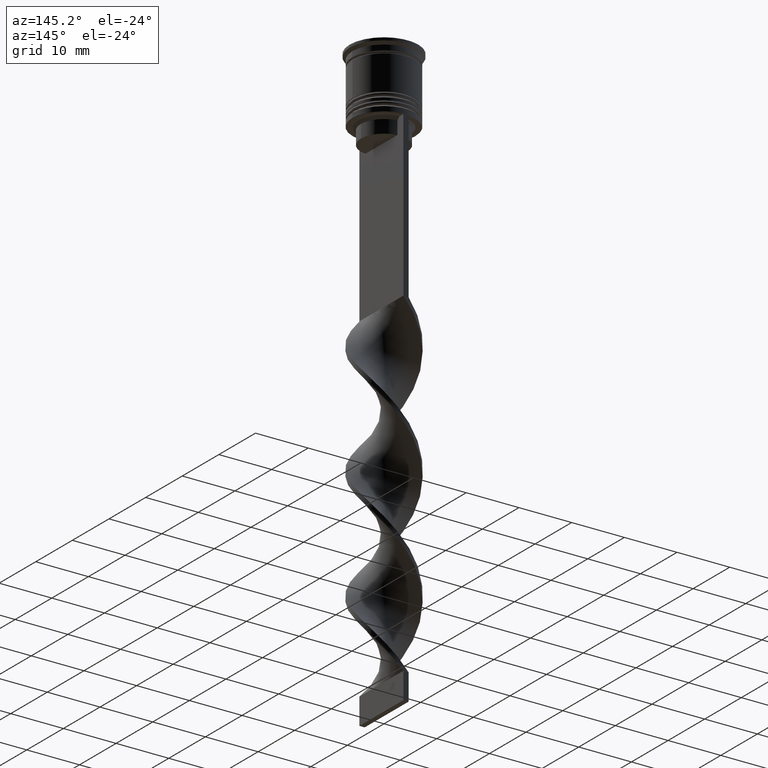
[diagram: clean part render]
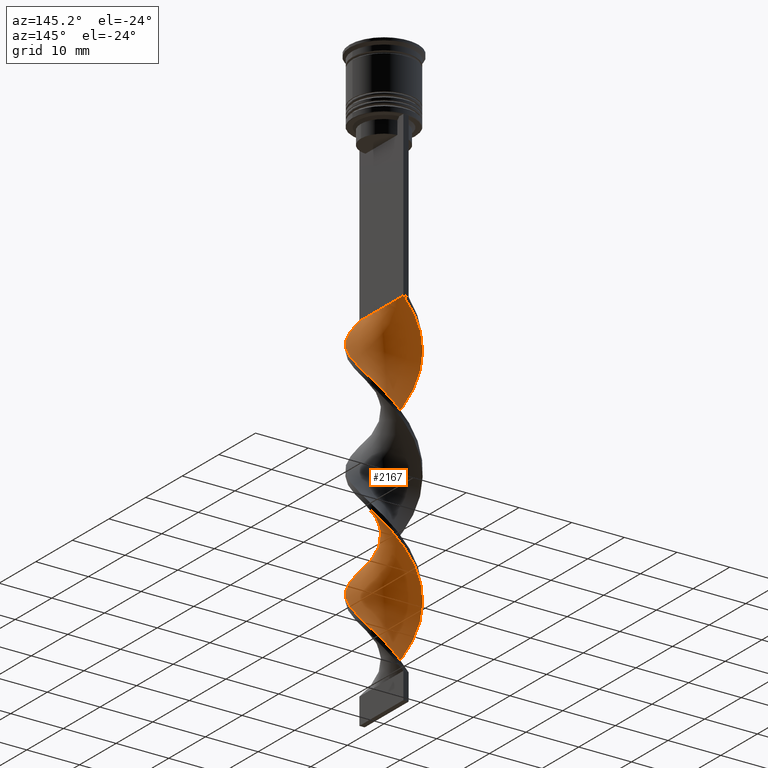
[diagram: same view with one face highlighted and labeled with its STEP entity id]
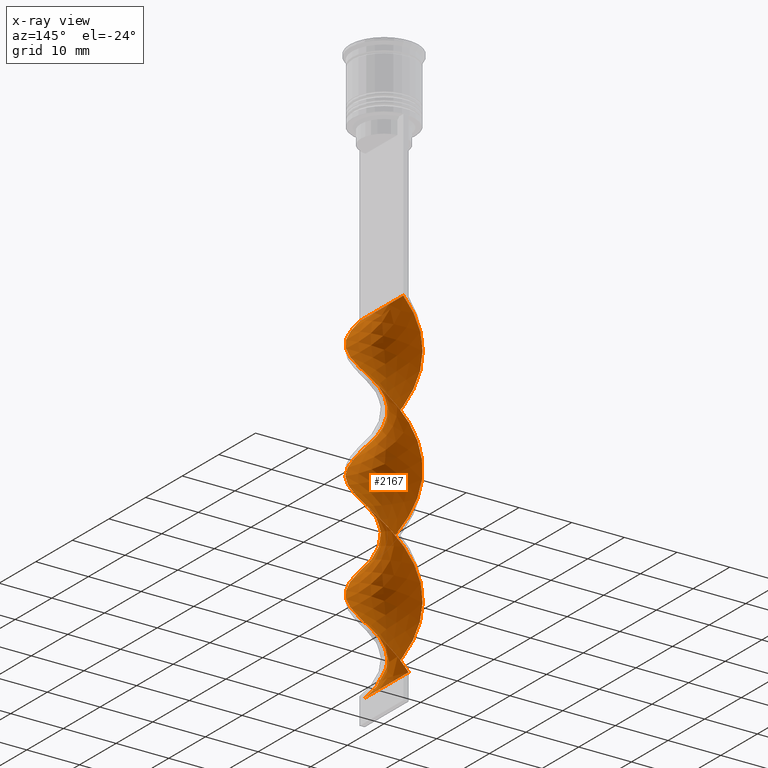
[diagram: x-ray of the same camera — body ghosted, the highlighted face saturated]
A machine part, auxiliary view. The second image highlights one B-rep face of the part: STEP entity #2167.
The next image is the same camera in x-ray: the body ghosted, the highlighted face saturated — about 0% of this face is hidden behind the body in this view.
In plain terms, the highlighted face is a freeform B-spline surface patch.
Its self-contained STEP definition (entity closure, byte-faithful):
#13 = CARTESIAN_POINT ( 'NONE',  ( 0.5000000000000002220, 6.000000000000000888, -43.50000000000000000 ) ) ;
#40 = EDGE_LOOP ( 'NONE', ( #1164, #1392, #2289, #112 ) ) ;
#46 = CARTESIAN_POINT ( 'NONE',  ( 6.016521584715984972, -0.2268656444829120489, -96.01282051282051100 ) ) ;
#47 = CARTESIAN_POINT ( 'NONE',  ( 1.228531899333563215, -5.939289008388868751, -44.32051282051282470 ) ) ;
#62 = CARTESIAN_POINT ( 'NONE',  ( 6.044068061194096231, 0.5036723384328413156, -96.83333333333332860 ) ) ;
#102 = CARTESIAN_POINT ( 'NONE',  ( 5.747901747727227395, 1.935476698729089007, -98.47435897435896379 ) ) ;
#106 = CARTESIAN_POINT ( 'NONE',  ( -5.432795012591220996, 2.595137443597922644, -94.37179487179486159 ) ) ;
#112 = ORIENTED_EDGE ( 'NONE', *, *, #320, .F. ) ;
#113 = CARTESIAN_POINT ( 'NONE',  ( 6.044068061194098007, -0.5036723384328427588, -75.50000000000000000 ) ) ;
#118 = CARTESIAN_POINT ( 'NONE',  ( -3.018907784180934861, -5.260288998093234802, -82.06410256410255499 ) ) ;
#122 = CARTESIAN_POINT ( 'NONE',  ( 5.747901747727229171, -1.935476698729089451, -73.85897435897436480 ) ) ;
#140 = CARTESIAN_POINT ( 'NONE',  ( -4.653870821996361151, -3.819880413333761826, -79.60256410256410220 ) ) ;
#153 = CARTESIAN_POINT ( 'NONE',  ( 4.190053366537507706, 4.384962638200772034, -101.7564102564102484 ) ) ;
#157 = CARTESIAN_POINT ( 'NONE',  ( -5.432795012591220996, 2.595137443597922644, -51.70512820512820440 ) ) ;
#161 = CARTESIAN_POINT ( 'NONE',  ( -5.747901747727229171, 1.935476698729089895, -52.52564102564102910 ) ) ;
#167 = CARTESIAN_POINT ( 'NONE',  ( -0.4999999999999994449, 5.999999999999999112, -107.5000000000000000 ) ) ;
#169 = CARTESIAN_POINT ( 'NONE',  ( -5.787399899633758338, -1.660121200912505479, -56.62820512820513130 ) ) ;
#170 = CARTESIAN_POINT ( 'NONE',  ( -1.228531899333566546, -5.939289008388870528, -106.6794871794871682 ) ) ;
#188 = CARTESIAN_POINT ( 'NONE',  ( -5.787399899633755673, 1.660121200912507478, -73.03846153846153300 ) ) ;
#189 = CARTESIAN_POINT ( 'NONE',  ( 4.190053366537507706, 4.384962638200772034, -59.08974358974358410 ) ) ;
#200 = CARTESIAN_POINT ( 'NONE',  ( 0.5000000000000002220, 6.000000000000000888, -86.16666666666667140 ) ) ;
#207 = CARTESIAN_POINT ( 'NONE',  ( -4.653870821996361151, -3.819880413333761826, -79.60256410256410220 ) ) ;
#211 = CARTESIAN_POINT ( 'NONE',  ( 2.614197889543182107, -5.472697136436196708, -45.96153846153845279 ) ) ;
#220 = CARTESIAN_POINT ( 'NONE',  ( -4.858046446425395182, -3.630954320453863460, -101.7564102564102484 ) ) ;
#235 = CARTESIAN_POINT ( 'NONE',  ( -3.231067045089217604, -5.080374567897375293, -104.2179487179487012 ) ) ;
#268 = CARTESIAN_POINT ( 'NONE',  ( -0.5000000000000004441, -2.000000000000000888, -107.5000000000000000 ) ) ;
#282 = CARTESIAN_POINT ( 'NONE',  ( 5.787399899633758338, 1.660121200912505923, -77.96153846153845279 ) ) ;
#285 = CARTESIAN_POINT ( 'NONE',  ( 0.2285318993335655469, 6.060710991611128584, -106.6794871794871682 ) ) ;
#320 = EDGE_CURVE ( 'NONE', #998, #657, #1242, .T. ) ;
#322 = VERTEX_POINT ( 'NONE', #1308 ) ;
#323 = CARTESIAN_POINT ( 'NONE',  ( 0.5000000000000002220, -5.999999999999999112, -43.50000000000000000 ) ) ;
#351 = CARTESIAN_POINT ( 'NONE',  ( 6.016521584715984972, -0.2268656444829120489, -53.34615384615383959 ) ) ;
#364 = CARTESIAN_POINT ( 'NONE',  ( -0.9504230770123205385, 5.945308736700091856, -87.80769230769230660 ) ) ;
#383 =( BOUNDED_SURFACE ( )  B_SPLINE_SURFACE ( 1, 2, ( 
 ( #1546, #723, #689, #1531, #2088, #3191, #705, #1013, #740, #2657, #157, #3226, #1836, #1265, #1846, #1543, #169, #1831, #3474, #397, #428, #2936, #3174, #1278, #2121, #1524, #2348, #3524, #3506, #1006, #1800, #3219, #3457, #734, #2951, #3241, #2620, #122, #1229, #2758, #1102, #1942, #282, #1609, #2234, #2973, #481, #776, #1067, #821, #2572, #2553, #2853, #3408, #364, #1494, #1163, #2283, #1477, #2607, #3388, #2316, #106, #2272, #736, #2395, #1569, #483, #2651, #2139, #1867, #2378, #2084, #987, #778, #3543, #2705, #170, #1247 ),
 ( #1279, #1834, #1847, #211, #3508, #2952, #1320, #2434, #1008, #1045, #3267, #2904, #411, #1526, #2637, #2363, #1963, #1649, #1104, #3054, #1394, #3362, #2723, #503, #2173, #3233, #2424, #511, #1037, #3280, #458, #3222, #2177, #2679, #1604, #2448, #188, #1298, #2411, #2933, #1622, #3284, #1885, #2134, #207, #1355, #1862, #3485, #1585, #982, #1553, #2966, #477, #2428, #3537, #2154, #2992, #2506, #2829, #1685, #1980, #2814, #1708, #2560, #46, #62, #2080, #102, #1540, #3432, #2885, #2015, #1761, #2183, #1948, #1592, #1668, #285, #1396 ) ),
 .UNSPECIFIED., .F., .F., .F. ) 
 B_SPLINE_SURFACE_WITH_KNOTS ( ( 2, 2 ),
 ( 3, 2, 2, 2, 2, 2, 2, 2, 2, 2, 2, 2, 2, 2, 2, 2, 2, 2, 2, 2, 2, 2, 2, 2, 2, 2, 2, 2, 2, 2, 2, 2, 2, 2, 2, 2, 2, 2, 2, 3 ),
 ( 0.000000000000000000, 1.000000000000000000 ),
 ( 0.000000000000000000, 0.01923076923076923184, 0.03846153846153846367, 0.05769230769230769551, 0.07692307692307692735, 0.09615384615384615918, 0.1153846153846153910, 0.1346153846153846090, 0.1538461538461538547, 0.1730769230769230727, 0.1923076923076923184, 0.2115384615384615363, 0.2307692307692307820, 0.2500000000000000000, 0.2692307692307692180, 0.2884615384615384359, 0.3076923076923077094, 0.3269230769230769273, 0.3461538461538461453, 0.3653846153846153633, 0.3846153846153846367, 0.4038461538461538547, 0.4230769230769230727, 0.4423076923076922906, 0.4615384615384615641, 0.4807692307692307820, 0.5000000000000000000, 0.5192307692307692735, 0.5384615384615384359, 0.5576923076923077094, 0.5769230769230768718, 0.5961538461538461453, 0.6153846153846154188, 0.6346153846153845812, 0.6538461538461538547, 0.6730769230769231282, 0.6923076923076922906, 0.7115384615384615641, 0.7307692307692307265, 0.7500000000000000000 ),
 .UNSPECIFIED. ) 
 GEOMETRIC_REPRESENTATION_ITEM ( )  RATIONAL_B_SPLINE_SURFACE ( (
 ( 1.000000000000000000, 0.9927088740980539727, 1.000000000000000000, 0.9927088740980539727, 1.000000000000000000, 0.9927088740980539727, 1.000000000000000000, 0.9927088740980539727, 1.000000000000000000, 0.9927088740980539727, 1.000000000000000000, 0.9927088740980539727, 1.000000000000000000, 0.9927088740980539727, 1.000000000000000000, 0.9927088740980539727, 1.000000000000000000, 0.9927088740980539727, 1.000000000000000000, 0.9927088740980539727, 1.000000000000000000, 0.9927088740980539727, 1.000000000000000000, 0.9927088740980539727, 1.000000000000000000, 0.9927088740980539727, 1.000000000000000000, 0.9927088740980539727, 1.000000000000000000, 0.9927088740980539727, 1.000000000000000000, 0.9927088740980539727, 1.000000000000000000, 0.9927088740980539727, 1.000000000000000000, 0.9927088740980539727, 1.000000000000000000, 0.9927088740980539727, 1.000000000000000000, 0.9927088740980539727, 1.000000000000000000, 0.9927088740980539727, 1.000000000000000000, 0.9927088740980539727, 1.000000000000000000, 0.9927088740980539727, 1.000000000000000000, 0.9927088740980539727, 1.000000000000000000, 0.9927088740980539727, 1.000000000000000000, 0.9927088740980539727, 1.000000000000000000, 0.9927088740980539727, 1.000000000000000000, 0.9927088740980539727, 1.000000000000000000, 0.9927088740980539727, 1.000000000000000000, 0.9927088740980539727, 1.000000000000000000, 0.9927088740980539727, 1.000000000000000000, 0.9927088740980539727, 1.000000000000000000, 0.9927088740980539727, 1.000000000000000000, 0.9927088740980539727, 1.000000000000000000, 0.9927088740980539727, 1.000000000000000000, 0.9927088740980539727, 1.000000000000000000, 0.9927088740980539727, 1.000000000000000000, 0.9927088740980539727, 1.000000000000000000, 0.9927088740980539727, 1.000000000000000000),
 ( 1.000000000000000000, 0.9927088740980539727, 1.000000000000000000, 0.9927088740980539727, 1.000000000000000000, 0.9927088740980539727, 1.000000000000000000, 0.9927088740980539727, 1.000000000000000000, 0.9927088740980539727, 1.000000000000000000, 0.9927088740980539727, 1.000000000000000000, 0.9927088740980539727, 1.000000000000000000, 0.9927088740980539727, 1.000000000000000000, 0.9927088740980539727, 1.000000000000000000, 0.9927088740980539727, 1.000000000000000000, 0.9927088740980539727, 1.000000000000000000, 0.9927088740980539727, 1.000000000000000000, 0.9927088740980539727, 1.000000000000000000, 0.9927088740980539727, 1.000000000000000000, 0.9927088740980539727, 1.000000000000000000, 0.9927088740980539727, 1.000000000000000000, 0.9927088740980539727, 1.000000000000000000, 0.9927088740980539727, 1.000000000000000000, 0.9927088740980539727, 1.000000000000000000, 0.9927088740980539727, 1.000000000000000000, 0.9927088740980539727, 1.000000000000000000, 0.9927088740980539727, 1.000000000000000000, 0.9927088740980539727, 1.000000000000000000, 0.9927088740980539727, 1.000000000000000000, 0.9927088740980539727, 1.000000000000000000, 0.9927088740980539727, 1.000000000000000000, 0.9927088740980539727, 1.000000000000000000, 0.9927088740980539727, 1.000000000000000000, 0.9927088740980539727, 1.000000000000000000, 0.9927088740980539727, 1.000000000000000000, 0.9927088740980539727, 1.000000000000000000, 0.9927088740980539727, 1.000000000000000000, 0.9927088740980539727, 1.000000000000000000, 0.9927088740980539727, 1.000000000000000000, 0.9927088740980539727, 1.000000000000000000, 0.9927088740980539727, 1.000000000000000000, 0.9927088740980539727, 1.000000000000000000, 0.9927088740980539727, 1.000000000000000000, 0.9927088740980539727, 1.000000000000000000) ) ) 
 REPRESENTATION_ITEM ( '' )  SURFACE ( )  );
#386 = CARTESIAN_POINT ( 'NONE',  ( 4.190053366537505930, -4.384962638200776475, -70.57692307692306599 ) ) ;
#395 = CARTESIAN_POINT ( 'NONE',  ( 3.231067045089215828, -5.080374567897374405, -46.78205128205127750 ) ) ;
#397 = CARTESIAN_POINT ( 'NONE',  ( -4.858046446425395182, -3.630954320453863460, -59.08974358974359120 ) ) ;
#402 = CARTESIAN_POINT ( 'NONE',  ( -5.787399899633758338, -1.660121200912505479, -56.62820512820513130 ) ) ;
#409 = CARTESIAN_POINT ( 'NONE',  ( 3.018907784180934417, 5.260288998093234802, -60.73076923076922640 ) ) ;
#411 = CARTESIAN_POINT ( 'NONE',  ( 6.016521584715984972, -0.2268656444829120489, -53.34615384615383959 ) ) ;
#426 = CARTESIAN_POINT ( 'NONE',  ( 6.016521584715984972, -0.2268656444829120489, -96.01282051282051100 ) ) ;
#428 = CARTESIAN_POINT ( 'NONE',  ( -4.352991323530323697, -4.159503159906208225, -59.91025641025640880 ) ) ;
#441 = CARTESIAN_POINT ( 'NONE',  ( 6.044068061194096231, 0.5036723384328413156, -96.83333333333332860 ) ) ;
#442 = VERTEX_POINT ( 'NONE', #3404 ) ;
#444 = LINE ( 'NONE', #1009, #2346 ) ;
#451 = CARTESIAN_POINT ( 'NONE',  ( 3.604480575359219952, -4.822625818147006527, -69.75641025641024839 ) ) ;
#455 = CARTESIAN_POINT ( 'NONE',  ( 5.895984904460661369, 1.219574518580964329, -97.65384615384614619 ) ) ;
#458 = CARTESIAN_POINT ( 'NONE',  ( -3.231067045089215384, 5.080374567897374405, -68.11538461538459899 ) ) ;
#469 = CARTESIAN_POINT ( 'NONE',  ( 2.614197889543185216, 5.472697136436197596, -83.70512820512820440 ) ) ;
#477 = CARTESIAN_POINT ( 'NONE',  ( 0.5000000000000002220, -5.999999999999999112, -86.16666666666667140 ) ) ;
#478 = CARTESIAN_POINT ( 'NONE',  ( -3.847936200635249104, 4.688051999358553878, -68.93589743589743080 ) ) ;
#481 = CARTESIAN_POINT ( 'NONE',  ( 4.352991323530323697, 4.159503159906207337, -81.24358974358973740 ) ) ;
#483 = CARTESIAN_POINT ( 'NONE',  ( -5.988975108237874601, -0.9574036273986639145, -98.47435897435896379 ) ) ;
#492 = CARTESIAN_POINT ( 'NONE',  ( -1.921364894438374993, -5.705993072412534062, -105.8589743589743506 ) ) ;
#503 = CARTESIAN_POINT ( 'NONE',  ( 1.672314254691079194, 5.829906481789051576, -62.37179487179486870 ) ) ;
#509 = CARTESIAN_POINT ( 'NONE',  ( -5.221935568727517740, -2.996896547440106584, -100.9358974358974308 ) ) ;
#511 = CARTESIAN_POINT ( 'NONE',  ( -1.228531899333561883, 5.939289008388868751, -65.65384615384614619 ) ) ;
#525 = CARTESIAN_POINT ( 'NONE',  ( 1.921364894438378323, 5.705993072412532285, -84.52564102564103621 ) ) ;
#657 = VERTEX_POINT ( 'NONE', #2590 ) ;
#658 = CARTESIAN_POINT ( 'NONE',  ( 5.747901747727229171, -1.935476698729089451, -73.85897435897436480 ) ) ;
#684 = CARTESIAN_POINT ( 'NONE',  ( 4.653870821996360263, 3.819880413333762270, -100.9358974358974308 ) ) ;
#689 = CARTESIAN_POINT ( 'NONE',  ( -0.9504230770123205385, 5.945308736700091856, -45.14102564102563520 ) ) ;
#697 = CARTESIAN_POINT ( 'NONE',  ( 1.228531899333563215, -5.939289008388868751, -86.98717948717948900 ) ) ;
#705 = CARTESIAN_POINT ( 'NONE',  ( -3.604480575359219952, 4.822625818147005639, -48.42307692307691269 ) ) ;
#708 = CARTESIAN_POINT ( 'NONE',  ( 0.9504230770123185401, -5.945308736700091856, -66.47435897435896379 ) ) ;
#716 = CARTESIAN_POINT ( 'NONE',  ( 0.2285318993335655469, 6.060710991611129472, -106.6794871794871824 ) ) ;
#723 = CARTESIAN_POINT ( 'NONE',  ( -0.2285318993335630489, 6.060710991611130360, -44.32051282051282470 ) ) ;
#726 = CARTESIAN_POINT ( 'NONE',  ( 2.345611019436006028, -5.545097739941144077, -68.11538461538459899 ) ) ;
#732 = CARTESIAN_POINT ( 'NONE',  ( 1.672314254691078972, 5.829906481789051576, -62.37179487179486870 ) ) ;
#734 = CARTESIAN_POINT ( 'NONE',  ( 4.190053366537505930, -4.384962638200775586, -70.57692307692306599 ) ) ;
#736 = CARTESIAN_POINT ( 'NONE',  ( -5.895984904460663145, 1.219574518580966771, -96.01282051282051100 ) ) ;
#740 = CARTESIAN_POINT ( 'NONE',  ( -4.653870821996361151, 3.819880413333764047, -50.06410256410256210 ) ) ;
#743 = CARTESIAN_POINT ( 'NONE',  ( -1.672314254691077640, 5.829906481789053352, -88.62820512820512420 ) ) ;
#749 = CARTESIAN_POINT ( 'NONE',  ( -5.221935568727515076, 2.996896547440107028, -71.39743589743588359 ) ) ;
#756 = CARTESIAN_POINT ( 'NONE',  ( -0.5000000000000009992, -6.000000000000000888, -107.5000000000000000 ) ) ;
#776 = CARTESIAN_POINT ( 'NONE',  ( 3.847936200635251769, 4.688051999358553878, -82.06410256410255499 ) ) ;
#778 = CARTESIAN_POINT ( 'NONE',  ( -3.231067045089217604, -5.080374567897375293, -104.2179487179487012 ) ) ;
#785 = CARTESIAN_POINT ( 'NONE',  ( 4.858046446425397846, 3.630954320453860795, -80.42307692307691980 ) ) ;
#821 = CARTESIAN_POINT ( 'NONE',  ( 2.614197889543185216, 5.472697136436197596, -83.70512820512820440 ) ) ;
#915 = CARTESIAN_POINT ( 'NONE',  ( 5.432795012591220107, 2.595137443597919980, -56.62820512820513130 ) ) ;
#955 = CARTESIAN_POINT ( 'NONE',  ( 5.432795012591220107, 2.595137443597919980, -99.29487179487178139 ) ) ;
#963 = CARTESIAN_POINT ( 'NONE',  ( -5.585824691029640299, -2.362838774426348376, -57.44871794871794890 ) ) ;
#968 = CARTESIAN_POINT ( 'NONE',  ( -4.190053366537509483, -4.384962638200769369, -80.42307692307691980 ) ) ;
#975 = CARTESIAN_POINT ( 'NONE',  ( -3.231067045089217604, -5.080374567897375293, -61.55128205128204399 ) ) ;
#982 = CARTESIAN_POINT ( 'NONE',  ( -1.672314254691079638, -5.829906481789051576, -83.70512820512820440 ) ) ;
#984 = CARTESIAN_POINT ( 'NONE',  ( 1.672314254691078972, 5.829906481789051576, -105.0384615384615188 ) ) ;
#987 = CARTESIAN_POINT ( 'NONE',  ( -3.847936200635251325, -4.688051999358553878, -103.3974358974358694 ) ) ;
#995 = CARTESIAN_POINT ( 'NONE',  ( -0.5000000000000009992, -6.000000000000000888, -64.83333333333332860 ) ) ;
#998 = VERTEX_POINT ( 'NONE', #13 ) ;
#1004 = CARTESIAN_POINT ( 'NONE',  ( -6.044068061194096231, -0.5036723384328406494, -75.50000000000000000 ) ) ;
#1006 = CARTESIAN_POINT ( 'NONE',  ( 1.672314254691075641, -5.829906481789053352, -67.29487179487178139 ) ) ;
#1008 = CARTESIAN_POINT ( 'NONE',  ( 5.221935568727515076, -2.996896547440107028, -50.06410256410256210 ) ) ;
#1009 = CARTESIAN_POINT ( 'NONE',  ( 0.5000000000000002220, -6.000000000000000000, -43.50000000000000000 ) ) ;
#1013 = CARTESIAN_POINT ( 'NONE',  ( -4.190053366537507706, 4.384962638200773810, -49.24358974358973740 ) ) ;
#1024 = CARTESIAN_POINT ( 'NONE',  ( -1.921364894438370552, 5.705993072412533174, -66.47435897435896379 ) ) ;
#1037 = CARTESIAN_POINT ( 'NONE',  ( -1.921364894438370552, 5.705993072412533174, -66.47435897435896379 ) ) ;
#1045 = CARTESIAN_POINT ( 'NONE',  ( 5.585824691029639411, -2.362838774426348376, -50.88461538461538680 ) ) ;
#1056 = CARTESIAN_POINT ( 'NONE',  ( -5.988975108237876377, -0.9574036273986638035, -98.47435897435896379 ) ) ;
#1067 = CARTESIAN_POINT ( 'NONE',  ( 3.231067045089220713, 5.080374567897373517, -82.88461538461537259 ) ) ;
#1102 = CARTESIAN_POINT ( 'NONE',  ( 6.016521584715985860, 0.2268656444829068586, -76.32051282051281760 ) ) ;
#1104 = CARTESIAN_POINT ( 'NONE',  ( 4.653870821996360263, 3.819880413333762270, -58.26923076923076650 ) ) ;
#1163 = CARTESIAN_POINT ( 'NONE',  ( -2.345611019436006028, 5.545097739941144077, -89.44871794871794179 ) ) ;
#1164 = ORIENTED_EDGE ( 'NONE', *, *, #1903, .F. ) ;
#1172 = CARTESIAN_POINT ( 'NONE',  ( 4.352991323530321033, -4.159503159906209113, -48.42307692307691269 ) ) ;
#1194 = CARTESIAN_POINT ( 'NONE',  ( 6.044068061194096231, 0.5036723384328413156, -54.16666666666666430 ) ) ;
#1201 = CARTESIAN_POINT ( 'NONE',  ( 5.432795012591220996, -2.595137443597923532, -73.03846153846153300 ) ) ;
#1226 = CARTESIAN_POINT ( 'NONE',  ( 4.858046446425392517, -3.630954320453864348, -91.91025641025643722 ) ) ;
#1229 = CARTESIAN_POINT ( 'NONE',  ( 5.895984904460663145, -1.219574518580968769, -74.67948717948718240 ) ) ;
#1238 = CARTESIAN_POINT ( 'NONE',  ( -0.9504230770123205385, 5.945308736700091856, -45.14102564102563520 ) ) ;
#1242 =( BOUNDED_CURVE ( )  B_SPLINE_CURVE ( 2, ( #2659, #2893, #1238, #1254, #1775, #1533, #2357, #2039, #3466, #3424, #2109, #161, #2609, #1562, #2370, #1269, #402, #963, #2063, #3147, #1839, #2381, #975, #2076, #2090, #2943, #995, #3212, #708, #2910, #726, #3165, #451, #386, #2929, #2673, #1201, #658, #1496, #113, #2339, #2960, #1897, #3019, #2422, #785, #1287, #2464, #2170, #469, #525, #3229, #200, #3253, #2442, #743, #1616, #2189, #3277, #3004, #1637, #3532, #2747, #2128, #1658, #2403, #1348, #1056, #1576, #2714, #509, #220, #2692, #2731, #235, #2983, #492, #1857, #1876 ),
 .UNSPECIFIED., .F., .T. ) 
 B_SPLINE_CURVE_WITH_KNOTS ( ( 3, 2, 2, 2, 2, 2, 2, 2, 2, 2, 2, 2, 2, 2, 2, 2, 2, 2, 2, 2, 2, 2, 2, 2, 2, 2, 2, 2, 2, 2, 2, 2, 2, 2, 2, 2, 2, 2, 2, 3 ),
 ( 0.000000000000000000, 0.01923076923076923184, 0.03846153846153846367, 0.05769230769230768857, 0.07692307692307692735, 0.09615384615384615918, 0.1153846153846153771, 0.1346153846153846090, 0.1538461538461538547, 0.1730769230769230449, 0.1923076923076923184, 0.2115384615384615363, 0.2307692307692307543, 0.2500000000000000000, 0.2692307692307692180, 0.2884615384615384359, 0.3076923076923077094, 0.3269230769230769273, 0.3461538461538460898, 0.3653846153846153633, 0.3846153846153846367, 0.4038461538461539102, 0.4230769230769230727, 0.4423076923076922906, 0.4615384615384615086, 0.4807692307692307820, 0.5000000000000000000, 0.5192307692307692735, 0.5384615384615384359, 0.5576923076923077094, 0.5769230769230768718, 0.5961538461538461453, 0.6153846153846154188, 0.6346153846153845812, 0.6538461538461538547, 0.6730769230769230171, 0.6923076923076921796, 0.7115384615384615641, 0.7307692307692307265, 0.7500000000000000000 ),
 .UNSPECIFIED. ) 
 CURVE ( )  GEOMETRIC_REPRESENTATION_ITEM ( )  RATIONAL_B_SPLINE_CURVE ( ( 1.000000000000000000, 0.9927088740980539727, 1.000000000000000000, 0.9927088740980539727, 1.000000000000000000, 0.9927088740980539727, 1.000000000000000000, 0.9927088740980539727, 1.000000000000000000, 0.9927088740980539727, 1.000000000000000000, 0.9927088740980539727, 1.000000000000000000, 0.9927088740980539727, 1.000000000000000000, 0.9927088740980539727, 1.000000000000000000, 0.9927088740980539727, 1.000000000000000000, 0.9927088740980539727, 1.000000000000000000, 0.9927088740980539727, 1.000000000000000000, 0.9927088740980539727, 1.000000000000000000, 0.9927088740980539727, 1.000000000000000000, 0.9927088740980539727, 1.000000000000000000, 0.9927088740980539727, 1.000000000000000000, 0.9927088740980539727, 1.000000000000000000, 0.9927088740980539727, 1.000000000000000000, 0.9927088740980539727, 1.000000000000000000, 0.9927088740980539727, 1.000000000000000000, 0.9927088740980539727, 1.000000000000000000, 0.9927088740980539727, 1.000000000000000000, 0.9927088740980539727, 1.000000000000000000, 0.9927088740980539727, 1.000000000000000000, 0.9927088740980539727, 1.000000000000000000, 0.9927088740980539727, 1.000000000000000000, 0.9927088740980539727, 1.000000000000000000, 0.9927088740980539727, 1.000000000000000000, 0.9927088740980539727, 1.000000000000000000, 0.9927088740980539727, 1.000000000000000000, 0.9927088740980539727, 1.000000000000000000, 0.9927088740980539727, 1.000000000000000000, 0.9927088740980539727, 1.000000000000000000, 0.9927088740980539727, 1.000000000000000000, 0.9927088740980539727, 1.000000000000000000, 0.9927088740980539727, 1.000000000000000000, 0.9927088740980539727, 1.000000000000000000, 0.9927088740980539727, 1.000000000000000000, 0.9927088740980539727, 1.000000000000000000, 0.9927088740980539727, 1.000000000000000000 ) ) 
 REPRESENTATION_ITEM ( '' )  );
#1245 = CARTESIAN_POINT ( 'NONE',  ( 4.653870821996360263, 3.819880413333762270, -58.26923076923076650 ) ) ;
#1247 = CARTESIAN_POINT ( 'NONE',  ( -0.5000000000000009992, -6.000000000000000888, -107.5000000000000000 ) ) ;
#1254 = CARTESIAN_POINT ( 'NONE',  ( -1.672314254691077640, 5.829906481789053352, -45.96153846153845990 ) ) ;
#1259 = CARTESIAN_POINT ( 'NONE',  ( 3.604480575359220840, 4.822625818147002086, -102.5769230769230660 ) ) ;
#1262 = DIRECTION ( 'NONE',  ( 0.000000000000000000, 1.000000000000000000, 0.000000000000000000 ) ) ;
#1265 = CARTESIAN_POINT ( 'NONE',  ( -6.044068061194098007, 0.5036723384328419817, -54.16666666666665719 ) ) ;
#1269 = CARTESIAN_POINT ( 'NONE',  ( -5.988975108237876377, -0.9574036273986638035, -55.80769230769230660 ) ) ;
#1276 = CARTESIAN_POINT ( 'NONE',  ( -5.895984904460662257, -1.219574518580961220, -76.32051282051281760 ) ) ;
#1278 = CARTESIAN_POINT ( 'NONE',  ( -2.614197889543184328, -5.472697136436197596, -62.37179487179486870 ) ) ;
#1279 = CARTESIAN_POINT ( 'NONE',  ( 0.5000000000000002220, -5.999999999999999112, -43.50000000000000000 ) ) ;
#1287 = CARTESIAN_POINT ( 'NONE',  ( 4.352991323530323697, 4.159503159906207337, -81.24358974358973740 ) ) ;
#1298 = CARTESIAN_POINT ( 'NONE',  ( -5.988975108237873712, 0.9574036273986636925, -73.85897435897436480 ) ) ;
#1299 = CARTESIAN_POINT ( 'NONE',  ( 0.2285318993335655469, 6.060710991611129472, -64.01282051282051100 ) ) ;
#1308 = CARTESIAN_POINT ( 'NONE',  ( 0.5000000000000002220, -5.999999999999999112, -43.50000000000000000 ) ) ;
#1320 = CARTESIAN_POINT ( 'NONE',  ( 4.352991323530321033, -4.159503159906209113, -48.42307692307691269 ) ) ;
#1348 = CARTESIAN_POINT ( 'NONE',  ( -6.016521584715986748, -0.2268656444829102170, -97.65384615384614619 ) ) ;
#1355 = CARTESIAN_POINT ( 'NONE',  ( -4.190053366537509483, -4.384962638200768481, -80.42307692307691980 ) ) ;
#1392 = ORIENTED_EDGE ( 'NONE', *, *, #2644, .T. ) ;
#1394 = CARTESIAN_POINT ( 'NONE',  ( 3.604480575359220840, 4.822625818147002086, -59.91025641025640880 ) ) ;
#1396 = CARTESIAN_POINT ( 'NONE',  ( -0.4999999999999994449, 5.999999999999999112, -107.5000000000000000 ) ) ;
#1463 = CARTESIAN_POINT ( 'NONE',  ( 5.895984904460661369, 1.219574518580964329, -54.98717948717948190 ) ) ;
#1477 = CARTESIAN_POINT ( 'NONE',  ( -3.604480575359219952, 4.822625818147005639, -91.08974358974359120 ) ) ;
#1481 =( BOUNDED_CURVE ( )  B_SPLINE_CURVE ( 2, ( #323, #47, #1999, #2561, #395, #2254, #1172, #2602, #2327, #2016, #1741, #2844, #351, #1194, #1463, #2584, #915, #3135, #1245, #189, #1588, #409, #2934, #732, #1519, #1299, #1829, #3238, #1024, #2068, #2413, #478, #2361, #3472, #749, #2633, #3520, #1798, #1541, #1004, #1276, #1863, #2969, #2902, #140, #968, #1814, #118, #2135, #2082, #3217, #1844, #3186, #697, #3172, #2949, #2665, #2918, #3203, #1226, #2345, #3455, #2681, #2117, #426, #441, #455, #2649, #955, #1554, #684, #153, #1259, #2376, #3486, #984, #2098, #716, #167 ),
 .UNSPECIFIED., .F., .T. ) 
 B_SPLINE_CURVE_WITH_KNOTS ( ( 3, 2, 2, 2, 2, 2, 2, 2, 2, 2, 2, 2, 2, 2, 2, 2, 2, 2, 2, 2, 2, 2, 2, 2, 2, 2, 2, 2, 2, 2, 2, 2, 2, 2, 2, 2, 2, 2, 2, 3 ),
 ( 0.000000000000000000, 0.01923076923076923184, 0.03846153846153846367, 0.05769230769230768857, 0.07692307692307692735, 0.09615384615384615918, 0.1153846153846153771, 0.1346153846153846090, 0.1538461538461538547, 0.1730769230769230449, 0.1923076923076923184, 0.2115384615384615363, 0.2307692307692307543, 0.2500000000000000000, 0.2692307692307692180, 0.2884615384615384359, 0.3076923076923077094, 0.3269230769230769273, 0.3461538461538460898, 0.3653846153846153633, 0.3846153846153846367, 0.4038461538461539102, 0.4230769230769230727, 0.4423076923076922906, 0.4615384615384615086, 0.4807692307692307820, 0.5000000000000000000, 0.5192307692307692735, 0.5384615384615384359, 0.5576923076923077094, 0.5769230769230768718, 0.5961538461538461453, 0.6153846153846154188, 0.6346153846153845812, 0.6538461538461538547, 0.6730769230769230171, 0.6923076923076921796, 0.7115384615384615641, 0.7307692307692307265, 0.7500000000000000000 ),
 .UNSPECIFIED. ) 
 CURVE ( )  GEOMETRIC_REPRESENTATION_ITEM ( )  RATIONAL_B_SPLINE_CURVE ( ( 1.000000000000000000, 0.9927088740980539727, 1.000000000000000000, 0.9927088740980539727, 1.000000000000000000, 0.9927088740980539727, 1.000000000000000000, 0.9927088740980539727, 1.000000000000000000, 0.9927088740980539727, 1.000000000000000000, 0.9927088740980539727, 1.000000000000000000, 0.9927088740980539727, 1.000000000000000000, 0.9927088740980539727, 1.000000000000000000, 0.9927088740980539727, 1.000000000000000000, 0.9927088740980539727, 1.000000000000000000, 0.9927088740980539727, 1.000000000000000000, 0.9927088740980539727, 1.000000000000000000, 0.9927088740980539727, 1.000000000000000000, 0.9927088740980539727, 1.000000000000000000, 0.9927088740980539727, 1.000000000000000000, 0.9927088740980539727, 1.000000000000000000, 0.9927088740980539727, 1.000000000000000000, 0.9927088740980539727, 1.000000000000000000, 0.9927088740980539727, 1.000000000000000000, 0.9927088740980539727, 1.000000000000000000, 0.9927088740980539727, 1.000000000000000000, 0.9927088740980539727, 1.000000000000000000, 0.9927088740980539727, 1.000000000000000000, 0.9927088740980539727, 1.000000000000000000, 0.9927088740980539727, 1.000000000000000000, 0.9927088740980539727, 1.000000000000000000, 0.9927088740980539727, 1.000000000000000000, 0.9927088740980539727, 1.000000000000000000, 0.9927088740980539727, 1.000000000000000000, 0.9927088740980539727, 1.000000000000000000, 0.9927088740980539727, 1.000000000000000000, 0.9927088740980539727, 1.000000000000000000, 0.9927088740980539727, 1.000000000000000000, 0.9927088740980539727, 1.000000000000000000, 0.9927088740980539727, 1.000000000000000000, 0.9927088740980539727, 1.000000000000000000, 0.9927088740980539727, 1.000000000000000000, 0.9927088740980539727, 1.000000000000000000, 0.9927088740980539727, 1.000000000000000000 ) ) 
 REPRESENTATION_ITEM ( '' )  );
#1494 = CARTESIAN_POINT ( 'NONE',  ( -1.672314254691077862, 5.829906481789053352, -88.62820512820513841 ) ) ;
#1496 = CARTESIAN_POINT ( 'NONE',  ( 5.895984904460663145, -1.219574518580968769, -74.67948717948718240 ) ) ;
#1519 = CARTESIAN_POINT ( 'NONE',  ( 0.9504230770123223149, 5.945308736700090080, -63.19230769230768630 ) ) ;
#1524 = CARTESIAN_POINT ( 'NONE',  ( -1.228531899333566546, -5.939289008388870528, -64.01282051282051100 ) ) ;
#1526 = CARTESIAN_POINT ( 'NONE',  ( 6.044068061194096231, 0.5036723384328413156, -54.16666666666665719 ) ) ;
#1531 = CARTESIAN_POINT ( 'NONE',  ( -1.672314254691077862, 5.829906481789053352, -45.96153846153845279 ) ) ;
#1533 = CARTESIAN_POINT ( 'NONE',  ( -3.018907784180934417, 5.260288998093236579, -47.60256410256409509 ) ) ;
#1540 = CARTESIAN_POINT ( 'NONE',  ( 5.432795012591220107, 2.595137443597919980, -99.29487179487178139 ) ) ;
#1541 = CARTESIAN_POINT ( 'NONE',  ( -6.016521584715984972, 0.2268656444829141028, -74.67948717948718240 ) ) ;
#1543 = CARTESIAN_POINT ( 'NONE',  ( -5.988975108237874601, -0.9574036273986639145, -55.80769230769230660 ) ) ;
#1546 = CARTESIAN_POINT ( 'NONE',  ( 0.5000000000000002220, 6.000000000000000888, -43.50000000000000000 ) ) ;
#1553 = CARTESIAN_POINT ( 'NONE',  ( -0.9504230770123257566, -5.945308736700090080, -84.52564102564103621 ) ) ;
#1554 = CARTESIAN_POINT ( 'NONE',  ( 5.117688277455212820, 3.254798188466753395, -100.1153846153846132 ) ) ;
#1562 = CARTESIAN_POINT ( 'NONE',  ( -6.044068061194098007, 0.5036723384328419817, -54.16666666666666430 ) ) ;
#1569 = CARTESIAN_POINT ( 'NONE',  ( -6.016521584715986748, -0.2268656444829102170, -97.65384615384614619 ) ) ;
#1576 = CARTESIAN_POINT ( 'NONE',  ( -5.787399899633758338, -1.660121200912505479, -99.29487179487178139 ) ) ;
#1577 = EDGE_CURVE ( 'NONE', #657, #442, #2563, .T. ) ;
#1585 = CARTESIAN_POINT ( 'NONE',  ( -2.345611019436009581, -5.545097739941142301, -82.88461538461537259 ) ) ;
#1588 = CARTESIAN_POINT ( 'NONE',  ( 3.604480575359220840, 4.822625818147002086, -59.91025641025640880 ) ) ;
#1592 = CARTESIAN_POINT ( 'NONE',  ( 1.672314254691079194, 5.829906481789051576, -105.0384615384615330 ) ) ;
#1604 = CARTESIAN_POINT ( 'NONE',  ( -5.221935568727515076, 2.996896547440107028, -71.39743589743588359 ) ) ;
#1609 = CARTESIAN_POINT ( 'NONE',  ( 5.585824691029641187, 2.362838774426345712, -78.78205128205127039 ) ) ;
#1616 = CARTESIAN_POINT ( 'NONE',  ( -2.345611019436006028, 5.545097739941144077, -89.44871794871794179 ) ) ;
#1622 = CARTESIAN_POINT ( 'NONE',  ( -5.895984904460662257, -1.219574518580961220, -76.32051282051281760 ) ) ;
#1637 = CARTESIAN_POINT ( 'NONE',  ( -4.653870821996361151, 3.819880413333764047, -92.73076923076922640 ) ) ;
#1649 = CARTESIAN_POINT ( 'NONE',  ( 5.117688277455212820, 3.254798188466753395, -57.44871794871794890 ) ) ;
#1658 = CARTESIAN_POINT ( 'NONE',  ( -5.895984904460663145, 1.219574518580966771, -96.01282051282051100 ) ) ;
#1668 = CARTESIAN_POINT ( 'NONE',  ( 0.9504230770123223149, 5.945308736700090080, -105.8589743589743506 ) ) ;
#1685 = CARTESIAN_POINT ( 'NONE',  ( 4.858046446425392517, -3.630954320453864348, -91.91025641025643722 ) ) ;
#1708 = CARTESIAN_POINT ( 'NONE',  ( 5.787399899633755673, -1.660121200912507033, -94.37179487179486159 ) ) ;
#1741 = CARTESIAN_POINT ( 'NONE',  ( 5.787399899633755673, -1.660121200912507033, -51.70512820512820440 ) ) ;
#1761 = CARTESIAN_POINT ( 'NONE',  ( 3.604480575359220840, 4.822625818147002086, -102.5769230769230660 ) ) ;
#1775 = CARTESIAN_POINT ( 'NONE',  ( -2.345611019436006028, 5.545097739941144077, -46.78205128205127750 ) ) ;
#1798 = CARTESIAN_POINT ( 'NONE',  ( -5.988975108237873712, 0.9574036273986635814, -73.85897435897436480 ) ) ;
#1800 = CARTESIAN_POINT ( 'NONE',  ( 2.345611019436006028, -5.545097739941144077, -68.11538461538459899 ) ) ;
#1814 = CARTESIAN_POINT ( 'NONE',  ( -3.604480575359221728, -4.822625818147002086, -81.24358974358973740 ) ) ;
#1829 = CARTESIAN_POINT ( 'NONE',  ( -0.4999999999999994449, 5.999999999999999112, -64.83333333333332860 ) ) ;
#1831 = CARTESIAN_POINT ( 'NONE',  ( -5.585824691029640299, -2.362838774426348376, -57.44871794871794890 ) ) ;
#1834 = CARTESIAN_POINT ( 'NONE',  ( 1.228531899333563437, -5.939289008388868751, -44.32051282051282470 ) ) ;
#1836 = CARTESIAN_POINT ( 'NONE',  ( -5.895984904460663145, 1.219574518580966771, -53.34615384615383959 ) ) ;
#1839 = CARTESIAN_POINT ( 'NONE',  ( -4.352991323530323697, -4.159503159906208225, -59.91025641025640880 ) ) ;
#1844 = CARTESIAN_POINT ( 'NONE',  ( -0.2285318993335662963, -6.060710991611129472, -85.34615384615385381 ) ) ;
#1846 = CARTESIAN_POINT ( 'NONE',  ( -6.016521584715986748, -0.2268656444829102170, -54.98717948717948190 ) ) ;
#1847 = CARTESIAN_POINT ( 'NONE',  ( 1.921364894438372550, -5.705993072412533174, -45.14102564102563520 ) ) ;
#1857 = CARTESIAN_POINT ( 'NONE',  ( -1.228531899333566324, -5.939289008388870528, -106.6794871794871824 ) ) ;
#1862 = CARTESIAN_POINT ( 'NONE',  ( -3.604480575359221728, -4.822625818147002086, -81.24358974358973740 ) ) ;
#1863 = CARTESIAN_POINT ( 'NONE',  ( -5.747901747727229171, -1.935476698729087008, -77.14102564102563520 ) ) ;
#1867 = CARTESIAN_POINT ( 'NONE',  ( -5.221935568727517740, -2.996896547440106584, -100.9358974358974308 ) ) ;
#1876 = CARTESIAN_POINT ( 'NONE',  ( -0.5000000000000009992, -6.000000000000000888, -107.5000000000000000 ) ) ;
#1885 = CARTESIAN_POINT ( 'NONE',  ( -5.432795012591220107, -2.595137443597920868, -77.96153846153845279 ) ) ;
#1897 = CARTESIAN_POINT ( 'NONE',  ( 5.787399899633758338, 1.660121200912505923, -77.96153846153845279 ) ) ;
#1903 = EDGE_CURVE ( 'NONE', #322, #998, #444, .T. ) ;
#1942 = CARTESIAN_POINT ( 'NONE',  ( 5.988975108237874601, 0.9574036273986615830, -77.14102564102563520 ) ) ;
#1948 = CARTESIAN_POINT ( 'NONE',  ( 2.345611019436006472, 5.545097739941142301, -104.2179487179487012 ) ) ;
#1963 = CARTESIAN_POINT ( 'NONE',  ( 5.432795012591220107, 2.595137443597919980, -56.62820512820513130 ) ) ;
#1980 = CARTESIAN_POINT ( 'NONE',  ( 5.221935568727515076, -2.996896547440107028, -92.73076923076922640 ) ) ;
#1999 = CARTESIAN_POINT ( 'NONE',  ( 1.921364894438372550, -5.705993072412533174, -45.14102564102563520 ) ) ;
#2015 = CARTESIAN_POINT ( 'NONE',  ( 4.190053366537507706, 4.384962638200771146, -101.7564102564102484 ) ) ;
#2016 = CARTESIAN_POINT ( 'NONE',  ( 5.585824691029638522, -2.362838774426348376, -50.88461538461537970 ) ) ;
#2039 = CARTESIAN_POINT ( 'NONE',  ( -4.190053366537507706, 4.384962638200774698, -49.24358974358974450 ) ) ;
#2063 = CARTESIAN_POINT ( 'NONE',  ( -5.221935568727517740, -2.996896547440106584, -58.26923076923076650 ) ) ;
#2068 = CARTESIAN_POINT ( 'NONE',  ( -2.614197889543180331, 5.472697136436197596, -67.29487179487178139 ) ) ;
#2076 = CARTESIAN_POINT ( 'NONE',  ( -2.614197889543184328, -5.472697136436197596, -62.37179487179486870 ) ) ;
#2080 = CARTESIAN_POINT ( 'NONE',  ( 5.895984904460661369, 1.219574518580964329, -97.65384615384614619 ) ) ;
#2082 = CARTESIAN_POINT ( 'NONE',  ( -1.672314254691079416, -5.829906481789051576, -83.70512820512820440 ) ) ;
#2084 = CARTESIAN_POINT ( 'NONE',  ( -4.352991323530323697, -4.159503159906208225, -102.5769230769230660 ) ) ;
#2088 = CARTESIAN_POINT ( 'NONE',  ( -2.345611019436006028, 5.545097739941144077, -46.78205128205127750 ) ) ;
#2090 = CARTESIAN_POINT ( 'NONE',  ( -1.921364894438374993, -5.705993072412534062, -63.19230769230768630 ) ) ;
#2098 = CARTESIAN_POINT ( 'NONE',  ( 0.9504230770123223149, 5.945308736700090080, -105.8589743589743506 ) ) ;
#2109 = CARTESIAN_POINT ( 'NONE',  ( -5.432795012591220996, 2.595137443597922644, -51.70512820512820440 ) ) ;
#2117 = CARTESIAN_POINT ( 'NONE',  ( 5.988975108237873712, -0.9574036273986640255, -95.19230769230769340 ) ) ;
#2121 = CARTESIAN_POINT ( 'NONE',  ( -1.921364894438374993, -5.705993072412534062, -63.19230769230768630 ) ) ;
#2128 = CARTESIAN_POINT ( 'NONE',  ( -5.747901747727229171, 1.935476698729089895, -95.19230769230769340 ) ) ;
#2134 = CARTESIAN_POINT ( 'NONE',  ( -5.117688277455215484, -3.254798188466750730, -78.78205128205127039 ) ) ;
#2135 = CARTESIAN_POINT ( 'NONE',  ( -2.345611019436009581, -5.545097739941142301, -82.88461538461537259 ) ) ;
#2139 = CARTESIAN_POINT ( 'NONE',  ( -5.585824691029640299, -2.362838774426348376, -100.1153846153846274 ) ) ;
#2154 = CARTESIAN_POINT ( 'NONE',  ( 2.614197889543182107, -5.472697136436196708, -88.62820512820513841 ) ) ;
#2167 = ADVANCED_FACE ( 'NONE', ( #3490 ), #383, .T. ) ;
#2170 = CARTESIAN_POINT ( 'NONE',  ( 3.231067045089220713, 5.080374567897373517, -82.88461538461537259 ) ) ;
#2173 = CARTESIAN_POINT ( 'NONE',  ( 0.9504230770123223149, 5.945308736700090080, -63.19230769230768630 ) ) ;
#2177 = CARTESIAN_POINT ( 'NONE',  ( -4.352991323530320145, 4.159503159906209113, -69.75641025641024839 ) ) ;
#2183 = CARTESIAN_POINT ( 'NONE',  ( 3.018907784180934861, 5.260288998093234802, -103.3974358974358694 ) ) ;
#2189 = CARTESIAN_POINT ( 'NONE',  ( -3.018907784180934417, 5.260288998093236579, -90.26923076923077360 ) ) ;
#2218 = CARTESIAN_POINT ( 'NONE',  ( -0.4999999999999994449, 5.999999999999999112, -107.5000000000000000 ) ) ;
#2234 = CARTESIAN_POINT ( 'NONE',  ( 5.221935568727518628, 2.996896547440106140, -79.60256410256410220 ) ) ;
#2254 = CARTESIAN_POINT ( 'NONE',  ( 3.847936200635249993, -4.688051999358552990, -47.60256410256409509 ) ) ;
#2272 = CARTESIAN_POINT ( 'NONE',  ( -5.747901747727229171, 1.935476698729089895, -95.19230769230769340 ) ) ;
#2283 = CARTESIAN_POINT ( 'NONE',  ( -3.018907784180934861, 5.260288998093236579, -90.26923076923075939 ) ) ;
#2289 = ORIENTED_EDGE ( 'NONE', *, *, #1577, .F. ) ;
#2316 = CARTESIAN_POINT ( 'NONE',  ( -5.117688277455214596, 3.254798188466754727, -93.55128205128204399 ) ) ;
#2327 = CARTESIAN_POINT ( 'NONE',  ( 5.221935568727515076, -2.996896547440107028, -50.06410256410256210 ) ) ;
#2339 = CARTESIAN_POINT ( 'NONE',  ( 6.016521584715985860, 0.2268656444829068586, -76.32051282051281760 ) ) ;
#2345 = CARTESIAN_POINT ( 'NONE',  ( 5.221935568727515076, -2.996896547440107028, -92.73076923076922640 ) ) ;
#2346 = VECTOR ( 'NONE', #1262, 1000.000000000000000 ) ;
#2348 = CARTESIAN_POINT ( 'NONE',  ( -0.5000000000000009992, -6.000000000000000888, -64.83333333333332860 ) ) ;
#2357 = CARTESIAN_POINT ( 'NONE',  ( -3.604480575359219952, 4.822625818147005639, -48.42307692307691269 ) ) ;
#2361 = CARTESIAN_POINT ( 'NONE',  ( -4.352991323530320145, 4.159503159906209113, -69.75641025641024839 ) ) ;
#2363 = CARTESIAN_POINT ( 'NONE',  ( 5.747901747727227395, 1.935476698729089007, -55.80769230769230660 ) ) ;
#2370 = CARTESIAN_POINT ( 'NONE',  ( -6.016521584715986748, -0.2268656444829102170, -54.98717948717948190 ) ) ;
#2376 = CARTESIAN_POINT ( 'NONE',  ( 3.018907784180934417, 5.260288998093234802, -103.3974358974358836 ) ) ;
#2378 = CARTESIAN_POINT ( 'NONE',  ( -4.858046446425395182, -3.630954320453863460, -101.7564102564102484 ) ) ;
#2381 = CARTESIAN_POINT ( 'NONE',  ( -3.847936200635251769, -4.688051999358553878, -60.73076923076922640 ) ) ;
#2395 = CARTESIAN_POINT ( 'NONE',  ( -6.044068061194098007, 0.5036723384328419817, -96.83333333333332860 ) ) ;
#2403 = CARTESIAN_POINT ( 'NONE',  ( -6.044068061194098007, 0.5036723384328419817, -96.83333333333332860 ) ) ;
#2411 = CARTESIAN_POINT ( 'NONE',  ( -6.016521584715984972, 0.2268656444829141028, -74.67948717948718240 ) ) ;
#2413 = CARTESIAN_POINT ( 'NONE',  ( -3.231067045089215384, 5.080374567897374405, -68.11538461538459899 ) ) ;
#2422 = CARTESIAN_POINT ( 'NONE',  ( 5.221935568727518628, 2.996896547440106140, -79.60256410256410220 ) ) ;
#2424 = CARTESIAN_POINT ( 'NONE',  ( -0.4999999999999994449, 5.999999999999999112, -64.83333333333332860 ) ) ;
#2428 = CARTESIAN_POINT ( 'NONE',  ( 1.228531899333563437, -5.939289008388868751, -86.98717948717948900 ) ) ;
#2434 = CARTESIAN_POINT ( 'NONE',  ( 4.858046446425392517, -3.630954320453864348, -49.24358974358973740 ) ) ;
#2442 = CARTESIAN_POINT ( 'NONE',  ( -0.9504230770123205385, 5.945308736700091856, -87.80769230769230660 ) ) ;
#2448 = CARTESIAN_POINT ( 'NONE',  ( -5.585824691029637634, 2.362838774426351485, -72.21794871794871540 ) ) ;
#2464 = CARTESIAN_POINT ( 'NONE',  ( 3.847936200635252213, 4.688051999358553878, -82.06410256410255499 ) ) ;
#2506 = CARTESIAN_POINT ( 'NONE',  ( 3.847936200635249993, -4.688051999358552990, -90.26923076923075939 ) ) ;
#2553 = CARTESIAN_POINT ( 'NONE',  ( 1.228531899333567434, 5.939289008388870528, -85.34615384615383959 ) ) ;
#2560 = CARTESIAN_POINT ( 'NONE',  ( 5.988975108237873712, -0.9574036273986641365, -95.19230769230769340 ) ) ;
#2561 = CARTESIAN_POINT ( 'NONE',  ( 2.614197889543182107, -5.472697136436196708, -45.96153846153845990 ) ) ;
#2563 = B_SPLINE_CURVE_WITH_KNOTS ( 'NONE', 3,
 ( #756, #268, #3290, #2218 ),
 .UNSPECIFIED., .F., .F.,
 ( 4, 4 ),
 ( 0.000000000000000000, 1.000000000000000000 ),
 .UNSPECIFIED. ) ;
#2572 = CARTESIAN_POINT ( 'NONE',  ( 1.921364894438378323, 5.705993072412532285, -84.52564102564103621 ) ) ;
#2584 = CARTESIAN_POINT ( 'NONE',  ( 5.747901747727227395, 1.935476698729089229, -55.80769230769230660 ) ) ;
#2590 = CARTESIAN_POINT ( 'NONE',  ( -0.5000000000000009992, -6.000000000000000888, -107.5000000000000000 ) ) ;
#2602 = CARTESIAN_POINT ( 'NONE',  ( 4.858046446425392517, -3.630954320453864348, -49.24358974358974450 ) ) ;
#2607 = CARTESIAN_POINT ( 'NONE',  ( -4.190053366537507706, 4.384962638200773810, -91.91025641025643722 ) ) ;
#2609 = CARTESIAN_POINT ( 'NONE',  ( -5.895984904460663145, 1.219574518580966771, -53.34615384615383959 ) ) ;
#2620 = CARTESIAN_POINT ( 'NONE',  ( 5.432795012591220996, -2.595137443597923532, -73.03846153846153300 ) ) ;
#2633 = CARTESIAN_POINT ( 'NONE',  ( -5.585824691029636746, 2.362838774426351485, -72.21794871794871540 ) ) ;
#2637 = CARTESIAN_POINT ( 'NONE',  ( 5.895984904460661369, 1.219574518580964329, -54.98717948717948190 ) ) ;
#2644 = EDGE_CURVE ( 'NONE', #322, #442, #1481, .T. ) ;
#2649 = CARTESIAN_POINT ( 'NONE',  ( 5.747901747727227395, 1.935476698729089229, -98.47435897435896379 ) ) ;
#2651 = CARTESIAN_POINT ( 'NONE',  ( -5.787399899633758338, -1.660121200912505479, -99.29487179487178139 ) ) ;
#2657 = CARTESIAN_POINT ( 'NONE',  ( -5.117688277455214596, 3.254798188466754727, -50.88461538461538680 ) ) ;
#2659 = CARTESIAN_POINT ( 'NONE',  ( 0.5000000000000002220, 6.000000000000000888, -43.50000000000000000 ) ) ;
#2665 = CARTESIAN_POINT ( 'NONE',  ( 3.231067045089215828, -5.080374567897374405, -89.44871794871794179 ) ) ;
#2673 = CARTESIAN_POINT ( 'NONE',  ( 5.117688277455212820, -3.254798188466756947, -72.21794871794871540 ) ) ;
#2679 = CARTESIAN_POINT ( 'NONE',  ( -4.858046446425391629, 3.630954320453866568, -70.57692307692306599 ) ) ;
#2681 = CARTESIAN_POINT ( 'NONE',  ( 5.787399899633755673, -1.660121200912507033, -94.37179487179486159 ) ) ;
#2692 = CARTESIAN_POINT ( 'NONE',  ( -4.352991323530323697, -4.159503159906208225, -102.5769230769230660 ) ) ;
#2705 = CARTESIAN_POINT ( 'NONE',  ( -1.921364894438374993, -5.705993072412534062, -105.8589743589743506 ) ) ;
#2714 = CARTESIAN_POINT ( 'NONE',  ( -5.585824691029640299, -2.362838774426348376, -100.1153846153846132 ) ) ;
#2723 = CARTESIAN_POINT ( 'NONE',  ( 2.345611019436006472, 5.545097739941142301, -61.55128205128204399 ) ) ;
#2731 = CARTESIAN_POINT ( 'NONE',  ( -3.847936200635251769, -4.688051999358553878, -103.3974358974358836 ) ) ;
#2747 = CARTESIAN_POINT ( 'NONE',  ( -5.432795012591220996, 2.595137443597922644, -94.37179487179486159 ) ) ;
#2758 = CARTESIAN_POINT ( 'NONE',  ( 6.044068061194098007, -0.5036723384328427588, -75.49999999999998579 ) ) ;
#2814 = CARTESIAN_POINT ( 'NONE',  ( 5.585824691029639411, -2.362838774426348376, -93.55128205128204399 ) ) ;
#2829 = CARTESIAN_POINT ( 'NONE',  ( 4.352991323530321033, -4.159503159906209113, -91.08974358974359120 ) ) ;
#2844 = CARTESIAN_POINT ( 'NONE',  ( 5.988975108237873712, -0.9574036273986640255, -52.52564102564102910 ) ) ;
#2853 = CARTESIAN_POINT ( 'NONE',  ( 0.5000000000000002220, 6.000000000000000888, -86.16666666666667140 ) ) ;
#2885 = CARTESIAN_POINT ( 'NONE',  ( 4.653870821996360263, 3.819880413333762270, -100.9358974358974308 ) ) ;
#2893 = CARTESIAN_POINT ( 'NONE',  ( -0.2285318993335630489, 6.060710991611131249, -44.32051282051282470 ) ) ;
#2902 = CARTESIAN_POINT ( 'NONE',  ( -5.117688277455215484, -3.254798188466750286, -78.78205128205127039 ) ) ;
#2904 = CARTESIAN_POINT ( 'NONE',  ( 5.988975108237873712, -0.9574036273986641365, -52.52564102564103621 ) ) ;
#2910 = CARTESIAN_POINT ( 'NONE',  ( 1.672314254691075641, -5.829906481789053352, -67.29487179487178139 ) ) ;
#2918 = CARTESIAN_POINT ( 'NONE',  ( 3.847936200635249993, -4.688051999358552990, -90.26923076923077360 ) ) ;
#2929 = CARTESIAN_POINT ( 'NONE',  ( 4.653870821996361151, -3.819880413333764047, -71.39743589743588359 ) ) ;
#2933 = CARTESIAN_POINT ( 'NONE',  ( -6.044068061194096231, -0.5036723384328405384, -75.49999999999998579 ) ) ;
#2934 = CARTESIAN_POINT ( 'NONE',  ( 2.345611019436006472, 5.545097739941142301, -61.55128205128204399 ) ) ;
#2936 = CARTESIAN_POINT ( 'NONE',  ( -3.847936200635251325, -4.688051999358553878, -60.73076923076922640 ) ) ;
#2943 = CARTESIAN_POINT ( 'NONE',  ( -1.228531899333566324, -5.939289008388870528, -64.01282051282051100 ) ) ;
#2949 = CARTESIAN_POINT ( 'NONE',  ( 2.614197889543182107, -5.472697136436196708, -88.62820512820512420 ) ) ;
#2951 = CARTESIAN_POINT ( 'NONE',  ( 4.653870821996361151, -3.819880413333764047, -71.39743589743588359 ) ) ;
#2952 = CARTESIAN_POINT ( 'NONE',  ( 3.847936200635249993, -4.688051999358552990, -47.60256410256408799 ) ) ;
#2960 = CARTESIAN_POINT ( 'NONE',  ( 5.988975108237876377, 0.9574036273986615830, -77.14102564102563520 ) ) ;
#2966 = CARTESIAN_POINT ( 'NONE',  ( -0.2285318993335662963, -6.060710991611128584, -85.34615384615383959 ) ) ;
#2969 = CARTESIAN_POINT ( 'NONE',  ( -5.432795012591220107, -2.595137443597920868, -77.96153846153845279 ) ) ;
#2973 = CARTESIAN_POINT ( 'NONE',  ( 4.858046446425397846, 3.630954320453860795, -80.42307692307691980 ) ) ;
#2983 = CARTESIAN_POINT ( 'NONE',  ( -2.614197889543184328, -5.472697136436197596, -105.0384615384615188 ) ) ;
#2992 = CARTESIAN_POINT ( 'NONE',  ( 3.231067045089215828, -5.080374567897374405, -89.44871794871794179 ) ) ;
#3004 = CARTESIAN_POINT ( 'NONE',  ( -4.190053366537507706, 4.384962638200774698, -91.91025641025643722 ) ) ;
#3019 = CARTESIAN_POINT ( 'NONE',  ( 5.585824691029641187, 2.362838774426345267, -78.78205128205127039 ) ) ;
#3054 = CARTESIAN_POINT ( 'NONE',  ( 4.190053366537507706, 4.384962638200771146, -59.08974358974359120 ) ) ;
#3135 = CARTESIAN_POINT ( 'NONE',  ( 5.117688277455212820, 3.254798188466753395, -57.44871794871794890 ) ) ;
#3147 = CARTESIAN_POINT ( 'NONE',  ( -4.858046446425395182, -3.630954320453863460, -59.08974358974358410 ) ) ;
#3165 = CARTESIAN_POINT ( 'NONE',  ( 3.018907784180933973, -5.260288998093237467, -68.93589743589743080 ) ) ;
#3172 = CARTESIAN_POINT ( 'NONE',  ( 1.921364894438372550, -5.705993072412533174, -87.80769230769230660 ) ) ;
#3174 = CARTESIAN_POINT ( 'NONE',  ( -3.231067045089217604, -5.080374567897375293, -61.55128205128204399 ) ) ;
#3186 = CARTESIAN_POINT ( 'NONE',  ( 0.5000000000000002220, -5.999999999999999112, -86.16666666666667140 ) ) ;
#3191 = CARTESIAN_POINT ( 'NONE',  ( -3.018907784180934861, 5.260288998093236579, -47.60256410256408799 ) ) ;
#3203 = CARTESIAN_POINT ( 'NONE',  ( 4.352991323530321033, -4.159503159906209113, -91.08974358974359120 ) ) ;
#3212 = CARTESIAN_POINT ( 'NONE',  ( 0.2285318993335617443, -6.060710991611131249, -65.65384615384614619 ) ) ;
#3217 = CARTESIAN_POINT ( 'NONE',  ( -0.9504230770123257566, -5.945308736700090080, -84.52564102564103621 ) ) ;
#3219 = CARTESIAN_POINT ( 'NONE',  ( 3.018907784180934417, -5.260288998093237467, -68.93589743589743080 ) ) ;
#3222 = CARTESIAN_POINT ( 'NONE',  ( -3.847936200635249104, 4.688051999358553878, -68.93589743589743080 ) ) ;
#3226 = CARTESIAN_POINT ( 'NONE',  ( -5.747901747727229171, 1.935476698729089895, -52.52564102564103621 ) ) ;
#3229 = CARTESIAN_POINT ( 'NONE',  ( 1.228531899333567212, 5.939289008388870528, -85.34615384615385381 ) ) ;
#3233 = CARTESIAN_POINT ( 'NONE',  ( 0.2285318993335655469, 6.060710991611128584, -64.01282051282051100 ) ) ;
#3238 = CARTESIAN_POINT ( 'NONE',  ( -1.228531899333561883, 5.939289008388868751, -65.65384615384614619 ) ) ;
#3241 = CARTESIAN_POINT ( 'NONE',  ( 5.117688277455212820, -3.254798188466757392, -72.21794871794871540 ) ) ;
#3253 = CARTESIAN_POINT ( 'NONE',  ( -0.2285318993335630489, 6.060710991611131249, -86.98717948717948900 ) ) ;
#3267 = CARTESIAN_POINT ( 'NONE',  ( 5.787399899633755673, -1.660121200912507033, -51.70512820512820440 ) ) ;
#3277 = CARTESIAN_POINT ( 'NONE',  ( -3.604480575359219952, 4.822625818147005639, -91.08974358974359120 ) ) ;
#3280 = CARTESIAN_POINT ( 'NONE',  ( -2.614197889543180331, 5.472697136436197596, -67.29487179487178139 ) ) ;
#3284 = CARTESIAN_POINT ( 'NONE',  ( -5.747901747727229171, -1.935476698729086786, -77.14102564102563520 ) ) ;
#3290 = CARTESIAN_POINT ( 'NONE',  ( -0.5000000000000000000, 1.999999999999999112, -107.5000000000000000 ) ) ;
#3362 = CARTESIAN_POINT ( 'NONE',  ( 3.018907784180934861, 5.260288998093234802, -60.73076923076922640 ) ) ;
#3388 = CARTESIAN_POINT ( 'NONE',  ( -4.653870821996361151, 3.819880413333764047, -92.73076923076922640 ) ) ;
#3404 = CARTESIAN_POINT ( 'NONE',  ( -0.4999999999999994449, 5.999999999999999112, -107.5000000000000000 ) ) ;
#3408 = CARTESIAN_POINT ( 'NONE',  ( -0.2285318993335630489, 6.060710991611130360, -86.98717948717948900 ) ) ;
#3424 = CARTESIAN_POINT ( 'NONE',  ( -5.117688277455214596, 3.254798188466754727, -50.88461538461537970 ) ) ;
#3432 = CARTESIAN_POINT ( 'NONE',  ( 5.117688277455212820, 3.254798188466753395, -100.1153846153846274 ) ) ;
#3455 = CARTESIAN_POINT ( 'NONE',  ( 5.585824691029638522, -2.362838774426348376, -93.55128205128204399 ) ) ;
#3457 = CARTESIAN_POINT ( 'NONE',  ( 3.604480575359219952, -4.822625818147006527, -69.75641025641024839 ) ) ;
#3466 = CARTESIAN_POINT ( 'NONE',  ( -4.653870821996361151, 3.819880413333764047, -50.06410256410256210 ) ) ;
#3472 = CARTESIAN_POINT ( 'NONE',  ( -4.858046446425391629, 3.630954320453866568, -70.57692307692306599 ) ) ;
#3474 = CARTESIAN_POINT ( 'NONE',  ( -5.221935568727517740, -2.996896547440106584, -58.26923076923076650 ) ) ;
#3485 = CARTESIAN_POINT ( 'NONE',  ( -3.018907784180935305, -5.260288998093234802, -82.06410256410255499 ) ) ;
#3486 = CARTESIAN_POINT ( 'NONE',  ( 2.345611019436006472, 5.545097739941142301, -104.2179487179487012 ) ) ;
#3490 = FACE_OUTER_BOUND ( 'NONE', #40, .T. ) ;
#3506 = CARTESIAN_POINT ( 'NONE',  ( 0.9504230770123185401, -5.945308736700091856, -66.47435897435896379 ) ) ;
#3508 = CARTESIAN_POINT ( 'NONE',  ( 3.231067045089215828, -5.080374567897374405, -46.78205128205127750 ) ) ;
#3520 = CARTESIAN_POINT ( 'NONE',  ( -5.787399899633755673, 1.660121200912507478, -73.03846153846153300 ) ) ;
#3524 = CARTESIAN_POINT ( 'NONE',  ( 0.2285318993335617443, -6.060710991611130360, -65.65384615384614619 ) ) ;
#3532 = CARTESIAN_POINT ( 'NONE',  ( -5.117688277455214596, 3.254798188466754727, -93.55128205128204399 ) ) ;
#3537 = CARTESIAN_POINT ( 'NONE',  ( 1.921364894438372550, -5.705993072412533174, -87.80769230769230660 ) ) ;
#3543 = CARTESIAN_POINT ( 'NONE',  ( -2.614197889543184328, -5.472697136436197596, -105.0384615384615330 ) ) ;